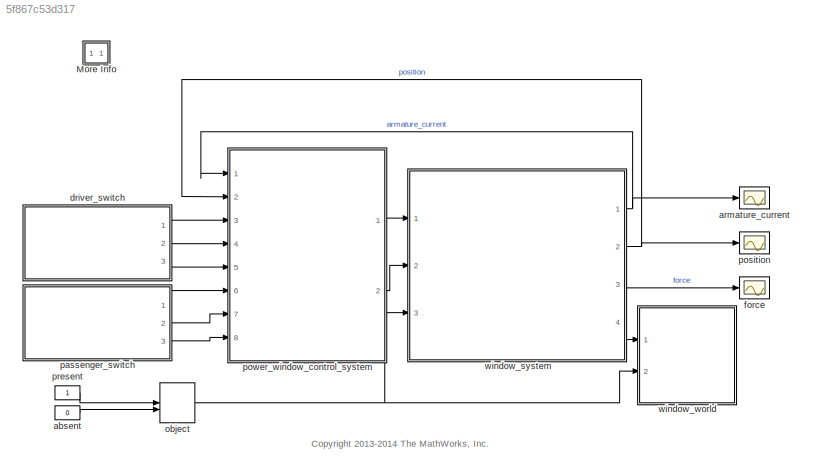
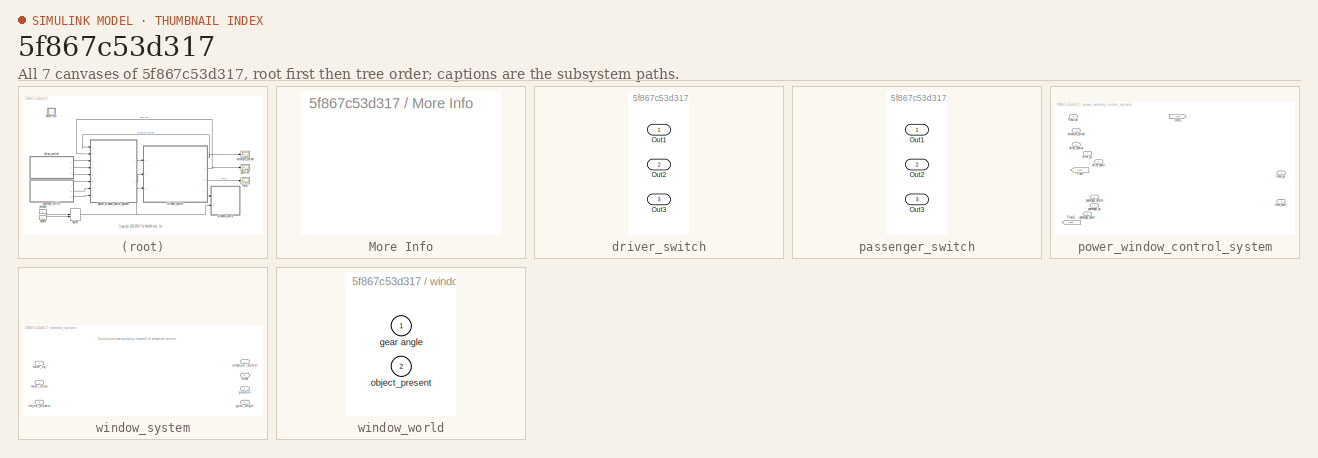
[diagram: thumbnail index - all 7 canvases of the model, root first then tree order]
MODEL slx_5f867c53d317
KIND model
BLOCK [SubSystem] More Info
  OpenFcn = showdemo('slexPowerWindowScript')
  Ports = []
  RequestExecContextInheritance = off
BLOCK [Constant] absent
  OutDataTypeStr = boolean
  Value = 0
BLOCK [Scope] armature_current
  Floating = off
  LimitDataPoints = off
  NumInputPorts = 1
  Ports = [1]
  SaveName = ScopeData2
  ShowLegends = off
  YMax = 15
  YMin = -15
BLOCK [SubSystem] driver_switch
  Ports = [0, 3]
  RequestExecContextInheritance = off
  Variant = on
BLOCK [Outport] driver_switch/Out1
  IconDisplay = Port number
BLOCK [Outport] driver_switch/Out2
  IconDisplay = Port number
  Port = 2
BLOCK [Outport] driver_switch/Out3
  IconDisplay = Port number
  Port = 3
BLOCK [Scope] force
  Floating = off
  LimitDataPoints = off
  NumInputPorts = 1
  Ports = [1]
  SaveName = ScopeData4
  ShowLegends = off
  YMax = 75
  YMin = -175
BLOCK [ManualSwitch] object
  CurrentSetting = 0
BLOCK [SubSystem] passenger_switch
  Ports = [0, 3]
  RequestExecContextInheritance = off
  Variant = on
BLOCK [Outport] passenger_switch/Out1
  IconDisplay = Port number
BLOCK [Outport] passenger_switch/Out2
  IconDisplay = Port number
  Port = 2
BLOCK [Outport] passenger_switch/Out3
  IconDisplay = Port number
  Port = 3
BLOCK [Scope] position
  Floating = off
  LimitDataPoints = off
  NumInputPorts = 1
  Ports = [1]
  ShowLegends = off
  TimeRange = 10
  YMax = 0.5
  YMin = -0.5
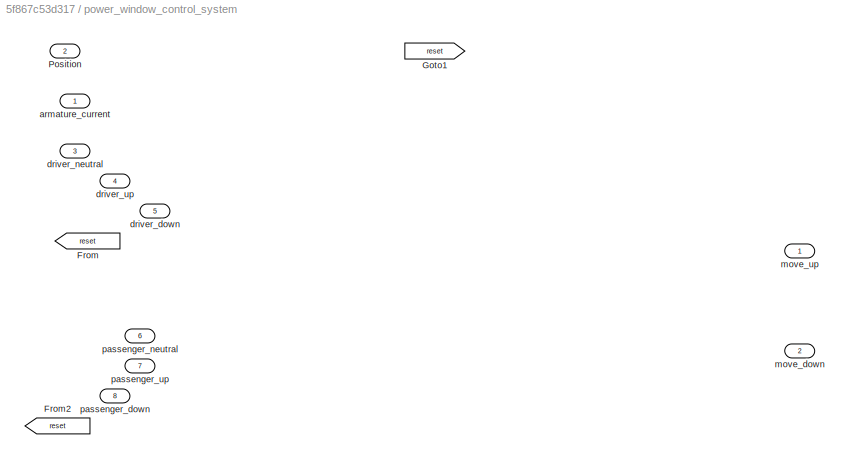
BLOCK [SubSystem] power_window_control_system
  Ports = [8, 2]
  RequestExecContextInheritance = off
BLOCK [From] power_window_control_system/From
  CloseFcn = tagdialog Close
  GotoTag = reset
BLOCK [From] power_window_control_system/From2
  CloseFcn = tagdialog Close
  GotoTag = reset
BLOCK [Goto] power_window_control_system/Goto1
  GotoTag = reset
BLOCK [Inport] power_window_control_system/Position
  IconDisplay = Port number
  Port = 2
BLOCK [Inport] power_window_control_system/armature_current
  IconDisplay = Port number
BLOCK [Inport] power_window_control_system/driver_down
  IconDisplay = Port number
  Port = 5
BLOCK [Inport] power_window_control_system/driver_neutral
  IconDisplay = Port number
  Port = 3
BLOCK [Inport] power_window_control_system/driver_up
  IconDisplay = Port number
  Port = 4
BLOCK [Outport] power_window_control_system/move_down
  IconDisplay = Port number
  Port = 2
BLOCK [Outport] power_window_control_system/move_up
  IconDisplay = Port number
BLOCK [Inport] power_window_control_system/passenger_down
  IconDisplay = Port number
  Port = 8
BLOCK [Inport] power_window_control_system/passenger_neutral
  IconDisplay = Port number
  Port = 6
BLOCK [Inport] power_window_control_system/passenger_up
  IconDisplay = Port number
  Port = 7
BLOCK [Constant] present
  OutDataTypeStr = boolean
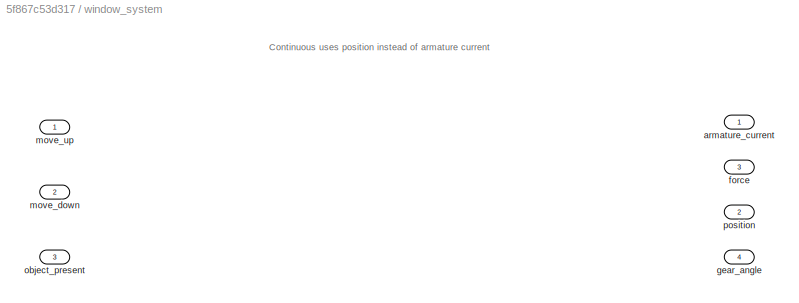
BLOCK [SubSystem] window_system
  Ports = [3, 4]
  RequestExecContextInheritance = off
  Variant = on
BLOCK [Outport] window_system/armature_current
  IconDisplay = Port number
BLOCK [Outport] window_system/force
  IconDisplay = Port number
  Port = 3
BLOCK [Outport] window_system/gear_angle
  IconDisplay = Port number
  Port = 4
BLOCK [Inport] window_system/move_down
  IconDisplay = Port number
  Port = 2
BLOCK [Inport] window_system/move_up
  IconDisplay = Port number
BLOCK [Inport] window_system/object_present
  IconDisplay = Port number
  Port = 3
BLOCK [Outport] window_system/position
  IconDisplay = Port number
  Port = 2
BLOCK [SubSystem] window_world
  LoadFcn = if license('test','virtual_reality_toolbox') & exist('slexPowerWindowMechWindow.wrl','file')\n     SL3DBlock = [gcs '/window_world/Simulink_3D_Animation View/VR Sink'];\n     vrmfunc('FnOpen', get_param(SL3DBlock,'handle'));\nend
  Ports = [2]
  RequestExecContextInheritance = off
  Variant = on
BLOCK [Inport] window_world/gear angle
  IconDisplay = Port number
BLOCK [Inport] window_world/object_present
  IconDisplay = Port number
  Port = 2
ANNOTATION (root): <copyright redacted>
ANNOTATION window_system: Continuous uses position instead of armature current
LINE absent:1 -> object:2
LINE driver_switch:1 -> power_window_control_system:3
LINE driver_switch:2 -> power_window_control_system:4
LINE driver_switch:3 -> power_window_control_system:5
NET object:1 -> window_system:3, window_world:2
LINE passenger_switch:1 -> power_window_control_system:6
LINE passenger_switch:2 -> power_window_control_system:7
LINE passenger_switch:3 -> power_window_control_system:8
LINE power_window_control_system:1 -> window_system:1
LINE power_window_control_system:2 -> window_system:2
LINE present:1 -> object:1
NET window_system:1 -> armature_current:1, power_window_control_system:1
NET window_system:2 -> position:1, power_window_control_system:2
LINE window_system:3 -> force:1
LINE window_system:4 -> window_world:1
note: NET lines group one-source signal fan-out (src -> all destinations, sorted); 1:1 wires keep LINE
